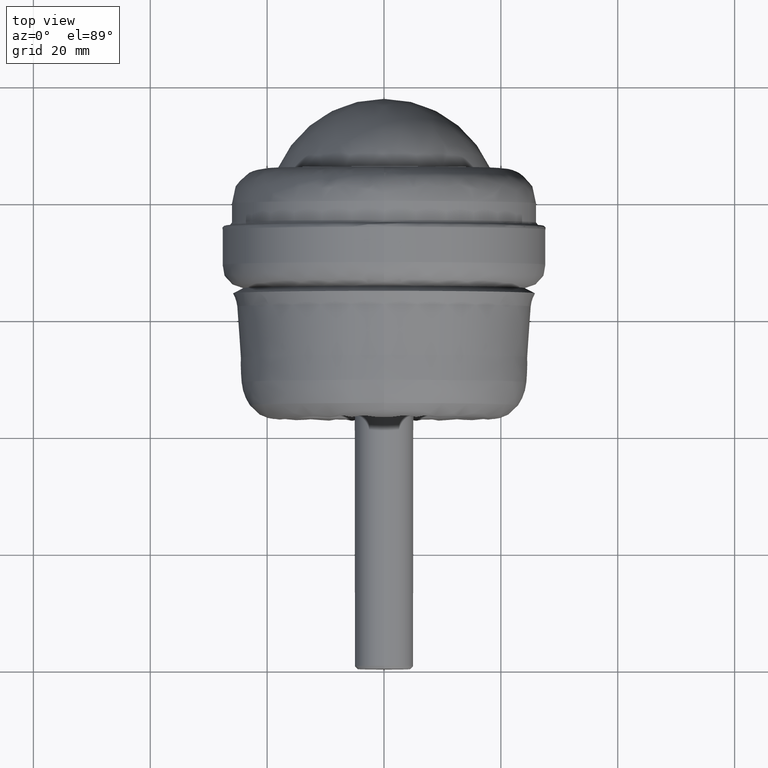
[diagram: clean part render]
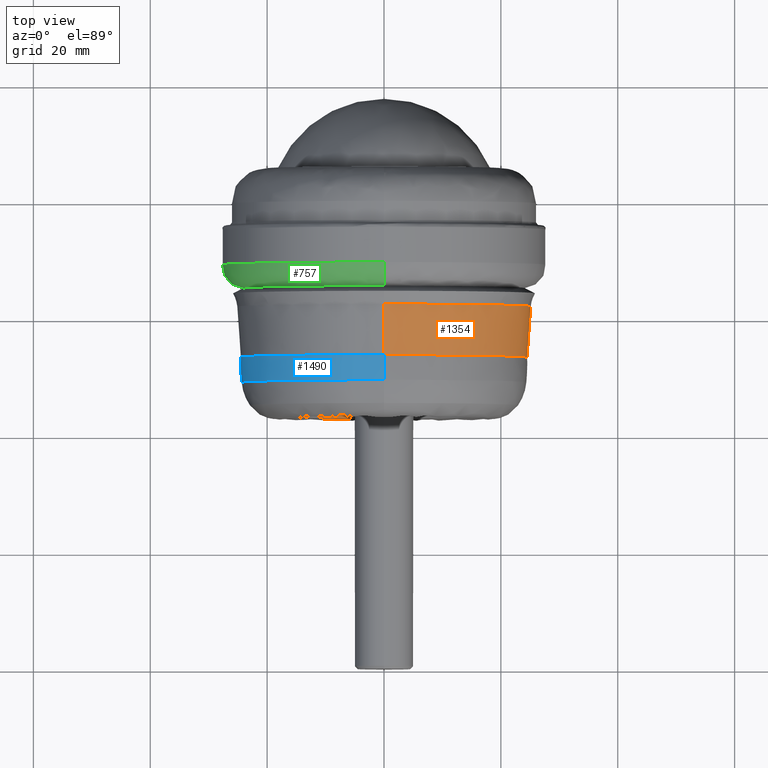
[diagram: same view with three faces highlighted in distinct colors, each labeled with its STEP entity id]
A machine part, top view with three faces highlighted in distinct colors.
Their STEP definitions:

[orange] entity #1354 — the highlighted face is a freeform B-spline surface patch.
#32 = EDGE_LOOP ( 'NONE', ( #1142, #723, #228, #1162 ) ) ;
#103 = CIRCLE ( 'NONE', #1120, 885.5000000000001137 ) ;
#155 = CARTESIAN_POINT ( 'NONE',  ( 0.0000000000000000000, 62.05476966150285278, -25.10057473738813627 ) ) ;
#169 = CARTESIAN_POINT ( 'NONE',  ( 3.047687336292754599E-15, 59.16715764718242809, 24.88625568134969868 ) ) ;
#173 = CARTESIAN_POINT ( 'NONE',  ( 50.20114947477625833, 62.05476966150285989, -25.10057473738813627 ) ) ;
#228 = ORIENTED_EDGE ( 'NONE', *, *, #1005, .F. ) ;
#307 = CARTESIAN_POINT ( 'NONE',  ( 49.37220535498086349, 56.27852915288359981, -24.68610267749043530 ) ) ;
#312 = VERTEX_POINT ( 'NONE', #1191 ) ;
#331 = AXIS2_PLACEMENT_3D ( 'NONE', #645, #938, #1789 ) ;
#430 = CARTESIAN_POINT ( 'NONE',  ( 49.77251136269937604, 59.16715764718242099, 24.88625568134968802 ) ) ;
#458 = CARTESIAN_POINT ( 'NONE',  ( 3.023175662741157483E-15, 56.27852915288360691, 24.68610267749044596 ) ) ;
#482 = VERTEX_POINT ( 'NONE', #1554 ) ;
#540 = DIRECTION ( 'NONE',  ( 0.0000000000000000000, 1.000000000000000000, 0.0000000000000000000 ) ) ;
#543 = CARTESIAN_POINT ( 'NONE',  ( 0.0000000000000000000, 62.05476966150285278, 0.0000000000000000000 ) ) ;
#568 = CARTESIAN_POINT ( 'NONE',  ( 3.000399419943975600E-15, 53.38895367403034697, 24.50012054114680637 ) ) ;
#588 = CIRCLE ( 'NONE', #1427, 25.10057473738813272 ) ;
#645 = CARTESIAN_POINT ( 'NONE',  ( 0.0000000000000000000, 53.38895367403021908, 0.0000000000000000000 ) ) ;
#683 = EDGE_CURVE ( 'NONE', #482, #312, #588, .T. ) ;
#717 = CARTESIAN_POINT ( 'NONE',  ( 0.0000000000000000000, -3.486916670000110852, -908.1716575799999873 ) ) ;
#723 = ORIENTED_EDGE ( 'NONE', *, *, #1031, .T. ) ;
#744 = CARTESIAN_POINT ( 'NONE',  ( 3.073933850890129675E-15, 62.05476966150285278, 25.10057473738813627 ) ) ;
#831 = FACE_OUTER_BOUND ( 'NONE', #32, .T. ) ;
#868 = DIRECTION ( 'NONE',  ( 1.000000000000000000, 0.0000000000000000000, 0.0000000000000000000 ) ) ;
#938 = DIRECTION ( 'NONE',  ( -0.0000000000000000000, -1.000000000000000000, -0.0000000000000000000 ) ) ;
#965 = CARTESIAN_POINT ( 'NONE',  ( 3.037166635417029958E-15, 53.38895367403021908, 24.50012054114644400 ) ) ;
#984 = DIRECTION ( 'NONE',  ( 0.0000000000000000000, 0.0000000000000000000, -1.000000000000000000 ) ) ;
#1005 = EDGE_CURVE ( 'NONE', #1049, #1141, #1024, .T. ) ;
#1024 = CIRCLE ( 'NONE', #331, 24.50012054114644400 ) ;
#1031 = EDGE_CURVE ( 'NONE', #482, #1141, #1607, .T. ) ;
#1034 = CARTESIAN_POINT ( 'NONE',  ( 0.0000000000000000000, 59.16715764718242809, -24.88625568134969868 ) ) ;
#1049 = VERTEX_POINT ( 'NONE', #1698 ) ;
#1081 = CARTESIAN_POINT ( 'NONE',  ( 1.112189513531693018E-13, -3.486916670000110852, 908.1716575799999873 ) ) ;
#1120 = AXIS2_PLACEMENT_3D ( 'NONE', #717, #868, #1284 ) ;
#1141 = VERTEX_POINT ( 'NONE', #965 ) ;
#1142 = ORIENTED_EDGE ( 'NONE', *, *, #683, .F. ) ;
#1162 = ORIENTED_EDGE ( 'NONE', *, *, #1567, .F. ) ;
#1166 = CARTESIAN_POINT ( 'NONE',  ( 0.0000000000000000000, 53.38895367403034697, -24.50012054114680637 ) ) ;
#1168 =( BOUNDED_SURFACE ( )  B_SPLINE_SURFACE ( 3, 3, ( 
 ( #155, #173, #1328, #744 ),
 ( #1034, #1309, #430, #169 ),
 ( #1186, #307, #1333, #458 ),
 ( #1166, #1451, #1595, #568 ) ),
 .UNSPECIFIED., .F., .F., .T. ) 
 B_SPLINE_SURFACE_WITH_KNOTS ( ( 4, 4 ),
 ( 4, 4 ),
 ( 0.0000000000000000000, 1.000000000000000000 ),
 ( 0.0000000000000000000, 1.000000000000000000 ),
 .UNSPECIFIED. ) 
 GEOMETRIC_REPRESENTATION_ITEM ( )  RATIONAL_B_SPLINE_SURFACE ( (
 ( 1.000000000000000000, 0.3333333333333334259, 0.3333333333333334259, 1.000000000000000000),
 ( 0.9999919805743925361, 0.3333306601914642897, 0.3333306601914642897, 0.9999919805743925361),
 ( 0.9999919805743925361, 0.3333306601914642897, 0.3333306601914642897, 0.9999919805743925361),
 ( 1.000000000000000000, 0.3333333333333334259, 0.3333333333333334259, 1.000000000000000000) ) ) 
 REPRESENTATION_ITEM ( '' )  SURFACE ( )  );
#1186 = CARTESIAN_POINT ( 'NONE',  ( 0.0000000000000000000, 56.27852915288360691, -24.68610267749044596 ) ) ;
#1191 = CARTESIAN_POINT ( 'NONE',  ( 0.0000000000000000000, 62.05476966150285278, -25.10057473738813272 ) ) ;
#1227 = DIRECTION ( 'NONE',  ( -1.000000000000000000, 0.0000000000000000000, 1.224646799147353207E-16 ) ) ;
#1284 = DIRECTION ( 'NONE',  ( 0.0000000000000000000, 0.0000000000000000000, -1.000000000000000000 ) ) ;
#1309 = CARTESIAN_POINT ( 'NONE',  ( 49.77251136269937604, 59.16715764718242099, -24.88625568134969868 ) ) ;
#1328 = CARTESIAN_POINT ( 'NONE',  ( 50.20114947477625833, 62.05476966150285989, 25.10057473738812917 ) ) ;
#1333 = CARTESIAN_POINT ( 'NONE',  ( 49.37220535498086349, 56.27852915288359981, 24.68610267749043174 ) ) ;
#1354 = ADVANCED_FACE ( 'NONE', ( #831 ), #1168, .F. ) ;
#1427 = AXIS2_PLACEMENT_3D ( 'NONE', #543, #540, #984 ) ;
#1451 = CARTESIAN_POINT ( 'NONE',  ( 49.00024108229359854, 53.38895367403033987, -24.50012054114680993 ) ) ;
#1554 = CARTESIAN_POINT ( 'NONE',  ( 3.118662137691519735E-15, 62.05476966150285278, 25.10057473738813627 ) ) ;
#1567 = EDGE_CURVE ( 'NONE', #312, #1049, #103, .T. ) ;
#1595 = CARTESIAN_POINT ( 'NONE',  ( 49.00024108229359854, 53.38895367403033987, 24.50012054114679927 ) ) ;
#1607 = CIRCLE ( 'NONE', #1753, 885.5000000000001137 ) ;
#1651 = DIRECTION ( 'NONE',  ( 1.224646799147352961E-16, 0.0000000000000000000, 1.000000000000000000 ) ) ;
#1698 = CARTESIAN_POINT ( 'NONE',  ( 0.0000000000000000000, 53.38895367403021908, -24.50012054114644400 ) ) ;
#1753 = AXIS2_PLACEMENT_3D ( 'NONE', #1081, #1227, #1651 ) ;
#1789 = DIRECTION ( 'NONE',  ( 0.0000000000000000000, 0.0000000000000000000, -1.000000000000000000 ) ) ;

[blue] entity #1490 — the highlighted face is a freeform B-spline surface patch.
#23 = AXIS2_PLACEMENT_3D ( 'NONE', #1533, #812, #1805 ) ;
#64 = DIRECTION ( 'NONE',  ( -0.0000000000000000000, -1.000000000000000000, -0.0000000000000000000 ) ) ;
#83 = CARTESIAN_POINT ( 'NONE',  ( -48.71963379171493358, 49.09655031537615599, -24.35981689585745968 ) ) ;
#149 = CIRCLE ( 'NONE', #718, 39.00000000000060396 ) ;
#160 = AXIS2_PLACEMENT_3D ( 'NONE', #203, #64, #1088 ) ;
#172 = ORIENTED_EDGE ( 'NONE', *, *, #367, .T. ) ;
#174 = CIRCLE ( 'NONE', #1250, 39.00000000000060396 ) ;
#201 = CARTESIAN_POINT ( 'NONE',  ( 2.983217178932746238E-15, 49.09655031537614178, 24.35981689585746679 ) ) ;
#203 = CARTESIAN_POINT ( 'NONE',  ( 0.0000000000000000000, 53.38895367403021908, 0.0000000000000000000 ) ) ;
#286 = DIRECTION ( 'NONE',  ( -1.000000000000000000, 0.0000000000000000000, 1.224646799147353207E-16 ) ) ;
#360 = CARTESIAN_POINT ( 'NONE',  ( -48.97084211176407109, 50.52404955565256728, 24.48542105588205331 ) ) ;
#363 = CARTESIAN_POINT ( 'NONE',  ( -5.966434357865491688E-15, 49.09655031537614178, -24.35981689585746679 ) ) ;
#367 = EDGE_CURVE ( 'NONE', #1141, #1049, #569, .T. ) ;
#489 = CARTESIAN_POINT ( 'NONE',  ( 3.000399419943931424E-15, 53.38895367403020487, 24.50012054114644400 ) ) ;
#495 = CARTESIAN_POINT ( 'NONE',  ( 2.991808299438301755E-15, 49.09655031537620573, 24.35981689585686993 ) ) ;
#513 = CARTESIAN_POINT ( 'NONE',  ( -6.000798839887862059E-15, 53.38895367403020487, -24.50012054114644400 ) ) ;
#516 =( BOUNDED_SURFACE ( )  B_SPLINE_SURFACE ( 3, 3, ( 
 ( #201, #1215, #83, #363 ),
 ( #1793, #360, #1247, #791 ),
 ( #1096, #1537, #1228, #1517 ),
 ( #489, #659, #1663, #513 ) ),
 .UNSPECIFIED., .F., .F., .T. ) 
 B_SPLINE_SURFACE_WITH_KNOTS ( ( 4, 4 ),
 ( 4, 4 ),
 ( 0.0000000000000000000, 1.000000000000000000 ),
 ( 0.0000000000000000000, 1.000000000000000000 ),
 .UNSPECIFIED. ) 
 GEOMETRIC_REPRESENTATION_ITEM ( )  RATIONAL_B_SPLINE_SURFACE ( (
 ( 1.000000000000000000, 0.3333333333333334259, 0.3333333333333334259, 1.000000000000000000),
 ( 0.9989886909886523947, 0.3329962303295508907, 0.3329962303295508907, 0.9989886909886523947),
 ( 0.9989886909886523947, 0.3329962303295508907, 0.3329962303295508907, 0.9989886909886523947),
 ( 1.000000000000000000, 0.3333333333333334259, 0.3333333333333334259, 1.000000000000000000) ) ) 
 REPRESENTATION_ITEM ( '' )  SURFACE ( )  );
#569 = CIRCLE ( 'NONE', #160, 24.50012054114644400 ) ;
#659 = CARTESIAN_POINT ( 'NONE',  ( -49.00024108229287378, 53.38895367403019065, 24.50012054114645466 ) ) ;
#681 = DIRECTION ( 'NONE',  ( 0.0000000000000000000, 0.0000000000000000000, -1.000000000000000000 ) ) ;
#718 = AXIS2_PLACEMENT_3D ( 'NONE', #1869, #286, #1172 ) ;
#736 = VERTEX_POINT ( 'NONE', #1147 ) ;
#791 = CARTESIAN_POINT ( 'NONE',  ( -5.997198504372229994E-15, 50.52404955565256017, -24.48542105588204265 ) ) ;
#812 = DIRECTION ( 'NONE',  ( -0.0000000000000000000, -1.000000000000000000, -0.0000000000000000000 ) ) ;
#817 = EDGE_CURVE ( 'NONE', #939, #736, #1306, .T. ) ;
#939 = VERTEX_POINT ( 'NONE', #495 ) ;
#965 = CARTESIAN_POINT ( 'NONE',  ( 3.037166635417029958E-15, 53.38895367403021908, 24.50012054114644400 ) ) ;
#1049 = VERTEX_POINT ( 'NONE', #1698 ) ;
#1068 = ORIENTED_EDGE ( 'NONE', *, *, #817, .F. ) ;
#1088 = DIRECTION ( 'NONE',  ( 0.0000000000000000000, 0.0000000000000000000, -1.000000000000000000 ) ) ;
#1096 = CARTESIAN_POINT ( 'NONE',  ( 3.004332463905186098E-15, 51.95629912209696499, 24.53223628230539077 ) ) ;
#1100 = EDGE_CURVE ( 'NONE', #736, #1049, #174, .T. ) ;
#1141 = VERTEX_POINT ( 'NONE', #965 ) ;
#1147 = CARTESIAN_POINT ( 'NONE',  ( 0.0000000000000000000, 49.09655031537620573, -24.35981689585686993 ) ) ;
#1172 = DIRECTION ( 'NONE',  ( 1.224646799147353454E-16, 0.0000000000000000000, 1.000000000000000000 ) ) ;
#1205 = ORIENTED_EDGE ( 'NONE', *, *, #1308, .T. ) ;
#1215 = CARTESIAN_POINT ( 'NONE',  ( -48.71963379171491937, 49.09655031537615599, 24.35981689585747745 ) ) ;
#1228 = CARTESIAN_POINT ( 'NONE',  ( -49.06447256461076734, 51.95629912209695789, -24.53223628230538012 ) ) ;
#1247 = CARTESIAN_POINT ( 'NONE',  ( -48.97084211176407820, 50.52404955565256728, -24.48542105588202844 ) ) ;
#1250 = AXIS2_PLACEMENT_3D ( 'NONE', #1273, #1822, #681 ) ;
#1273 = CARTESIAN_POINT ( 'NONE',  ( 0.0000000000000000000, 52.51491232489239991, 14.49008401999999762 ) ) ;
#1306 = CIRCLE ( 'NONE', #23, 24.35981689585686993 ) ;
#1308 = EDGE_CURVE ( 'NONE', #939, #1141, #149, .T. ) ;
#1341 = FACE_OUTER_BOUND ( 'NONE', #1548, .T. ) ;
#1490 = ADVANCED_FACE ( 'NONE', ( #1341 ), #516, .T. ) ;
#1517 = CARTESIAN_POINT ( 'NONE',  ( -6.008664927810372195E-15, 51.95629912209696499, -24.53223628230539077 ) ) ;
#1533 = CARTESIAN_POINT ( 'NONE',  ( 0.0000000000000000000, 49.09655031537620573, 0.0000000000000000000 ) ) ;
#1537 = CARTESIAN_POINT ( 'NONE',  ( -49.06447256461076023, 51.95629912209695789, 24.53223628230539433 ) ) ;
#1548 = EDGE_LOOP ( 'NONE', ( #1068, #1205, #172, #1700 ) ) ;
#1663 = CARTESIAN_POINT ( 'NONE',  ( -49.00024108229288800, 53.38895367403019065, -24.50012054114643689 ) ) ;
#1698 = CARTESIAN_POINT ( 'NONE',  ( 0.0000000000000000000, 53.38895367403021908, -24.50012054114644400 ) ) ;
#1700 = ORIENTED_EDGE ( 'NONE', *, *, #1100, .F. ) ;
#1793 = CARTESIAN_POINT ( 'NONE',  ( 2.998599252186114997E-15, 50.52404955565256017, 24.48542105588204265 ) ) ;
#1805 = DIRECTION ( 'NONE',  ( 0.0000000000000000000, 0.0000000000000000000, -1.000000000000000000 ) ) ;
#1822 = DIRECTION ( 'NONE',  ( 1.000000000000000000, 0.0000000000000000000, 0.0000000000000000000 ) ) ;
#1869 = CARTESIAN_POINT ( 'NONE',  ( -1.774523501446920834E-15, 52.51491232489239991, -14.49008401999999762 ) ) ;

[green] entity #757 — the highlighted face is a freeform B-spline surface patch.
#26 = DIRECTION ( 'NONE',  ( 0.0000000000000000000, 0.0000000000000000000, -1.000000000000000000 ) ) ;
#34 = CARTESIAN_POINT ( 'NONE',  ( 0.0000000000000000000, 69.20000000000000284, 0.0000000000000000000 ) ) ;
#97 = DIRECTION ( 'NONE',  ( 1.224646799147353454E-16, 0.0000000000000000000, 1.000000000000000000 ) ) ;
#158 = VERTEX_POINT ( 'NONE', #840 ) ;
#165 = CARTESIAN_POINT ( 'NONE',  ( -48.18414610779627338, 65.21465358772955767, -24.09207305389812603 ) ) ;
#178 = CARTESIAN_POINT ( 'NONE',  ( 3.398394867633905489E-15, 67.01294116382329946, 27.75000000000000000 ) ) ;
#217 = DIRECTION ( 'NONE',  ( 0.0000000000000000000, 0.0000000000000000000, -1.000000000000000000 ) ) ;
#219 = CIRCLE ( 'NONE', #1276, 24.09207305389813314 ) ;
#276 = CARTESIAN_POINT ( 'NONE',  ( 0.0000000000000000000, 65.21465358772955767, 0.0000000000000000000 ) ) ;
#303 = CARTESIAN_POINT ( 'NONE',  ( -6.796789735267810978E-15, 67.01294116382329946, -27.75000000000000000 ) ) ;
#316 = AXIS2_PLACEMENT_3D ( 'NONE', #1010, #696, #575 ) ;
#351 = CARTESIAN_POINT ( 'NONE',  ( 0.0000000000000000000, 69.20000000000000284, -23.75000000000000000 ) ) ;
#377 = EDGE_LOOP ( 'NONE', ( #1479, #1232, #1846, #1119, #1568 ) ) ;
#396 = DIRECTION ( 'NONE',  ( 0.0000000000000000000, 0.0000000000000000000, -1.000000000000000000 ) ) ;
#445 = CIRCLE ( 'NONE', #1238, 27.75000000000000355 ) ;
#466 = CIRCLE ( 'NONE', #522, 4.000000000000003553 ) ;
#494 = VERTEX_POINT ( 'NONE', #1683 ) ;
#522 = AXIS2_PLACEMENT_3D ( 'NONE', #837, #1136, #97 ) ;
#534 = CIRCLE ( 'NONE', #866, 4.000000000000003553 ) ;
#553 = CARTESIAN_POINT ( 'NONE',  ( 3.398394867633905883E-15, 69.20000000000000284, 27.75000000000000355 ) ) ;
#575 = DIRECTION ( 'NONE',  ( 0.0000000000000000000, 0.0000000000000000000, -1.000000000000000000 ) ) ;
#591 = CARTESIAN_POINT ( 'NONE',  ( -52.54223965088682746, 65.40168706151602862, -26.27111982544340307 ) ) ;
#608 = CARTESIAN_POINT ( 'NONE',  ( -55.50000000000000711, 69.20000000000000284, -27.74999999999999289 ) ) ;
#696 = DIRECTION ( 'NONE',  ( -0.0000000000000000000, -1.000000000000000000, -0.0000000000000000000 ) ) ;
#710 = EDGE_CURVE ( 'NONE', #905, #494, #1826, .T. ) ;
#757 = ADVANCED_FACE ( 'NONE', ( #1553 ), #801, .T. ) ;
#801 =( BOUNDED_SURFACE ( )  B_SPLINE_SURFACE ( 3, 3, ( 
 ( #1573, #1740, #165, #1464 ),
 ( #1345, #1752, #591, #1617 ),
 ( #178, #1602, #1336, #303 ),
 ( #1193, #1330, #608, #1048 ) ),
 .UNSPECIFIED., .F., .F., .T. ) 
 B_SPLINE_SURFACE_WITH_KNOTS ( ( 4, 4 ),
 ( 4, 4 ),
 ( 0.0000000000000000000, 1.000000000000000000 ),
 ( 0.0000000000000000000, 1.000000000000000000 ),
 .UNSPECIFIED. ) 
 GEOMETRIC_REPRESENTATION_ITEM ( )  RATIONAL_B_SPLINE_SURFACE ( (
 ( 1.000000000000000000, 0.3333333333333334259, 0.3333333333333334259, 1.000000000000000000),
 ( 0.8244812548112916417, 0.2748270849370972879, 0.2748270849370972879, 0.8244812548112916417),
 ( 0.8244812548112916417, 0.2748270849370972879, 0.2748270849370972879, 0.8244812548112916417),
 ( 1.000000000000000000, 0.3333333333333334259, 0.3333333333333334259, 1.000000000000000000) ) ) 
 REPRESENTATION_ITEM ( '' )  SURFACE ( )  );
#837 = CARTESIAN_POINT ( 'NONE',  ( 2.908536147974964107E-15, 69.20000000000000284, 23.75000000000000000 ) ) ;
#840 = CARTESIAN_POINT ( 'NONE',  ( 3.174411441330980301E-15, 65.21465358772955767, 24.09207305389813314 ) ) ;
#866 = AXIS2_PLACEMENT_3D ( 'NONE', #351, #1384, #217 ) ;
#905 = VERTEX_POINT ( 'NONE', #1551 ) ;
#908 = VERTEX_POINT ( 'NONE', #1218 ) ;
#909 = EDGE_CURVE ( 'NONE', #494, #908, #534, .T. ) ;
#1000 = DIRECTION ( 'NONE',  ( -0.0000000000000000000, -1.000000000000000000, -0.0000000000000000000 ) ) ;
#1010 = CARTESIAN_POINT ( 'NONE',  ( 0.0000000000000000000, 65.21465358772955767, 0.0000000000000000000 ) ) ;
#1048 = CARTESIAN_POINT ( 'NONE',  ( -6.796789735267811767E-15, 69.20000000000000284, -27.75000000000000355 ) ) ;
#1119 = ORIENTED_EDGE ( 'NONE', *, *, #909, .F. ) ;
#1136 = DIRECTION ( 'NONE',  ( -1.000000000000000000, 0.0000000000000000000, 1.224646799147353207E-16 ) ) ;
#1170 = EDGE_CURVE ( 'NONE', #158, #1329, #466, .T. ) ;
#1193 = CARTESIAN_POINT ( 'NONE',  ( 3.398394867633905883E-15, 69.20000000000000284, 27.75000000000000355 ) ) ;
#1218 = CARTESIAN_POINT ( 'NONE',  ( 0.0000000000000000000, 69.20000000000000284, -27.75000000000000355 ) ) ;
#1232 = ORIENTED_EDGE ( 'NONE', *, *, #1170, .T. ) ;
#1238 = AXIS2_PLACEMENT_3D ( 'NONE', #34, #1626, #26 ) ;
#1276 = AXIS2_PLACEMENT_3D ( 'NONE', #276, #1000, #396 ) ;
#1329 = VERTEX_POINT ( 'NONE', #553 ) ;
#1330 = CARTESIAN_POINT ( 'NONE',  ( -55.49999999999999289, 69.20000000000000284, 27.75000000000001421 ) ) ;
#1336 = CARTESIAN_POINT ( 'NONE',  ( -55.49999999999999289, 67.01294116382331367, -27.74999999999998934 ) ) ;
#1345 = CARTESIAN_POINT ( 'NONE',  ( 3.217284280424585950E-15, 65.40168706151602862, 26.27111982544341728 ) ) ;
#1384 = DIRECTION ( 'NONE',  ( 1.000000000000000000, 0.0000000000000000000, 0.0000000000000000000 ) ) ;
#1464 = CARTESIAN_POINT ( 'NONE',  ( -5.900856030056109436E-15, 65.21465358772955767, -24.09207305389813314 ) ) ;
#1479 = ORIENTED_EDGE ( 'NONE', *, *, #1652, .F. ) ;
#1551 = CARTESIAN_POINT ( 'NONE',  ( -24.09207305389813314, 65.21465358772955767, 3.056909219760481665E-15 ) ) ;
#1553 = FACE_OUTER_BOUND ( 'NONE', #377, .T. ) ;
#1568 = ORIENTED_EDGE ( 'NONE', *, *, #710, .F. ) ;
#1573 = CARTESIAN_POINT ( 'NONE',  ( 2.950428015028055112E-15, 65.21465358772955767, 24.09207305389813314 ) ) ;
#1602 = CARTESIAN_POINT ( 'NONE',  ( -55.49999999999998579, 67.01294116382331367, 27.75000000000001421 ) ) ;
#1617 = CARTESIAN_POINT ( 'NONE',  ( -6.434568560849171900E-15, 65.40168706151602862, -26.27111982544341728 ) ) ;
#1626 = DIRECTION ( 'NONE',  ( -0.0000000000000000000, -1.000000000000000000, -0.0000000000000000000 ) ) ;
#1652 = EDGE_CURVE ( 'NONE', #158, #905, #219, .T. ) ;
#1683 = CARTESIAN_POINT ( 'NONE',  ( 0.0000000000000000000, 65.21465358772955767, -24.09207305389813314 ) ) ;
#1740 = CARTESIAN_POINT ( 'NONE',  ( -48.18414610779625917, 65.21465358772955767, 24.09207305389814735 ) ) ;
#1752 = CARTESIAN_POINT ( 'NONE',  ( -52.54223965088682036, 65.40168706151602862, 26.27111982544342084 ) ) ;
#1781 = EDGE_CURVE ( 'NONE', #1329, #908, #445, .T. ) ;
#1826 = CIRCLE ( 'NONE', #316, 24.09207305389813314 ) ;
#1846 = ORIENTED_EDGE ( 'NONE', *, *, #1781, .T. ) ;